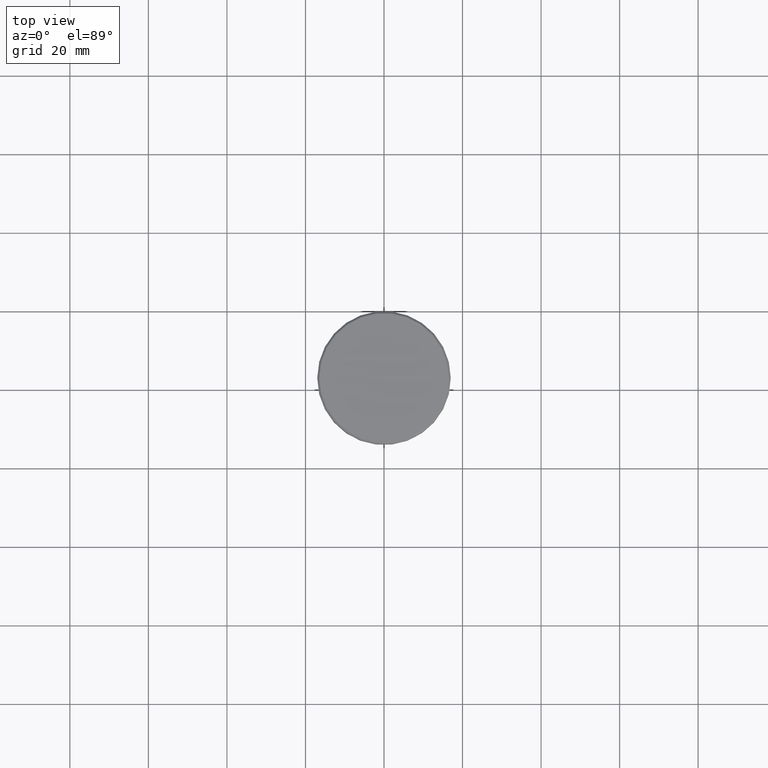
[diagram: clean part render]
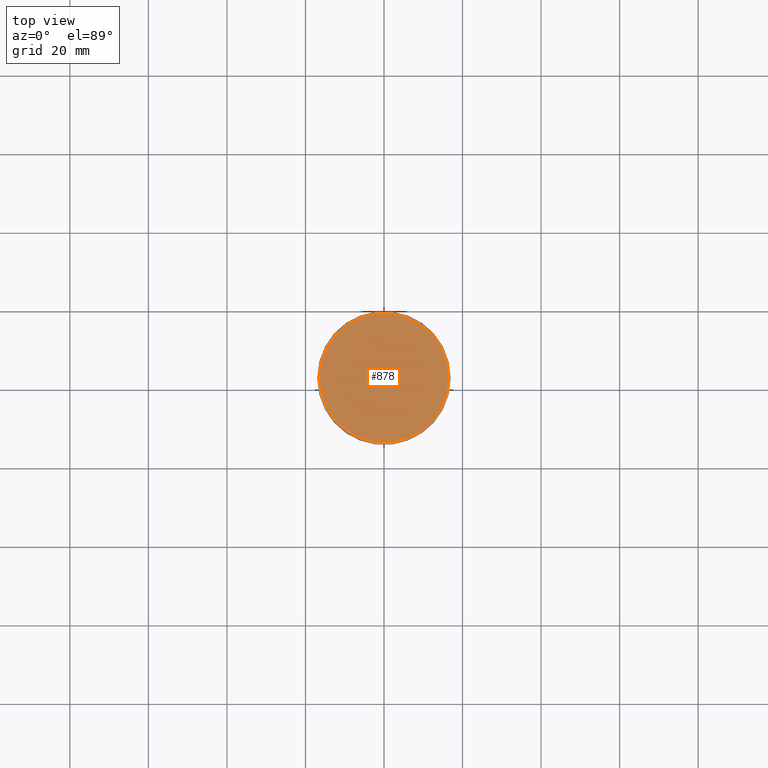
[diagram: same view with one face highlighted and labeled with its STEP entity id]
A machine part, top view. The second image highlights one B-rep face of the part: STEP entity #878.
In plain terms, the highlighted planar face has unit normal (0, -0, 1).
Its self-contained STEP definition (entity closure, byte-faithful):
#28 = DIRECTION ( 'NONE',  ( -0.000000000000000000, -0.000000000000000000, 1.000000000000000000 ) ) ;
#60 = AXIS2_PLACEMENT_3D ( 'NONE', #316, #942, #133 ) ;
#133 = DIRECTION ( 'NONE',  ( 1.000000000000000000, 0.000000000000000000, 0.000000000000000000 ) ) ;
#144 = ORIENTED_EDGE ( 'NONE', *, *, #214, .T. ) ;
#212 = VERTEX_POINT ( 'NONE', #1089 ) ;
#214 = EDGE_CURVE ( 'NONE', #580, #212, #720, .T. ) ;
#227 = PLANE ( 'NONE',  #60 ) ;
#263 = DIRECTION ( 'NONE',  ( 1.000000000000000000, 0.000000000000000000, 0.000000000000000000 ) ) ;
#291 = CIRCLE ( 'NONE', #437, 16.49999999999995737 ) ;
#308 = AXIS2_PLACEMENT_3D ( 'NONE', #979, #715, #263 ) ;
#316 = CARTESIAN_POINT ( 'NONE',  ( 0.000000000000000000, 0.000000000000000000, 0.000000000000000000 ) ) ;
#355 = EDGE_LOOP ( 'NONE', ( #144, #526 ) ) ;
#437 = AXIS2_PLACEMENT_3D ( 'NONE', #651, #28, #1109 ) ;
#526 = ORIENTED_EDGE ( 'NONE', *, *, #793, .T. ) ;
#580 = VERTEX_POINT ( 'NONE', #828 ) ;
#651 = CARTESIAN_POINT ( 'NONE',  ( 0.000000000000000000, 0.000000000000000000, 0.000000000000000000 ) ) ;
#715 = DIRECTION ( 'NONE',  ( -0.000000000000000000, -0.000000000000000000, 1.000000000000000000 ) ) ;
#720 = CIRCLE ( 'NONE', #308, 16.49999999999995737 ) ;
#793 = EDGE_CURVE ( 'NONE', #212, #580, #291, .T. ) ;
#828 = CARTESIAN_POINT ( 'NONE',  ( -16.49999999999995737, 0.000000000000000000, 0.000000000000000000 ) ) ;
#878 = ADVANCED_FACE ( 'NONE', ( #1040 ), #227, .T. ) ;
#942 = DIRECTION ( 'NONE',  ( 0.000000000000000000, -0.000000000000000000, 1.000000000000000000 ) ) ;
#979 = CARTESIAN_POINT ( 'NONE',  ( 0.000000000000000000, 0.000000000000000000, 0.000000000000000000 ) ) ;
#1040 = FACE_OUTER_BOUND ( 'NONE', #355, .T. ) ;
#1089 = CARTESIAN_POINT ( 'NONE',  ( 16.49999999999995737, 2.051283388571814520E-15, 0.000000000000000000 ) ) ;
#1109 = DIRECTION ( 'NONE',  ( 1.000000000000000000, 0.000000000000000000, 0.000000000000000000 ) ) ;